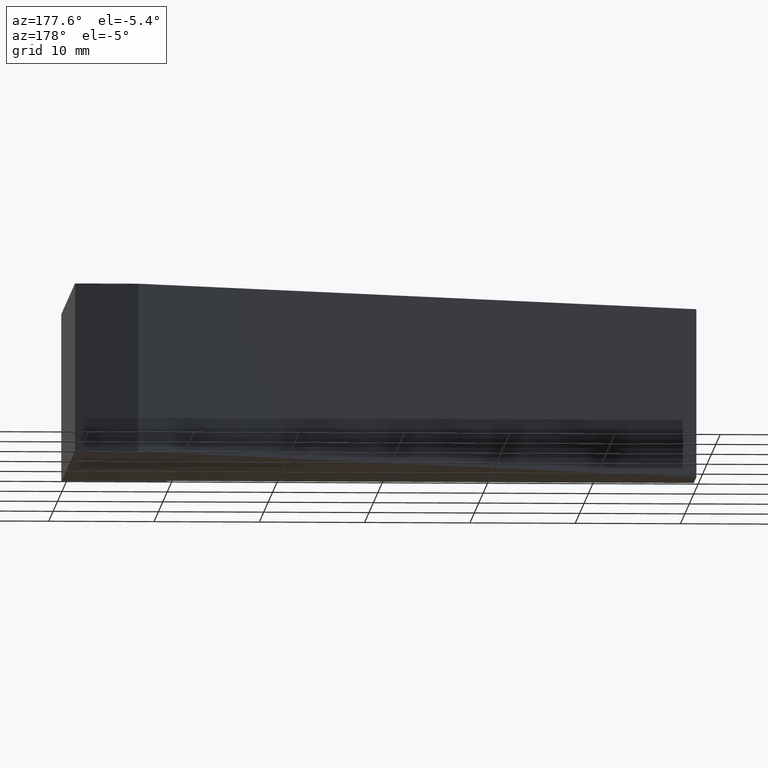
[diagram: clean part render]
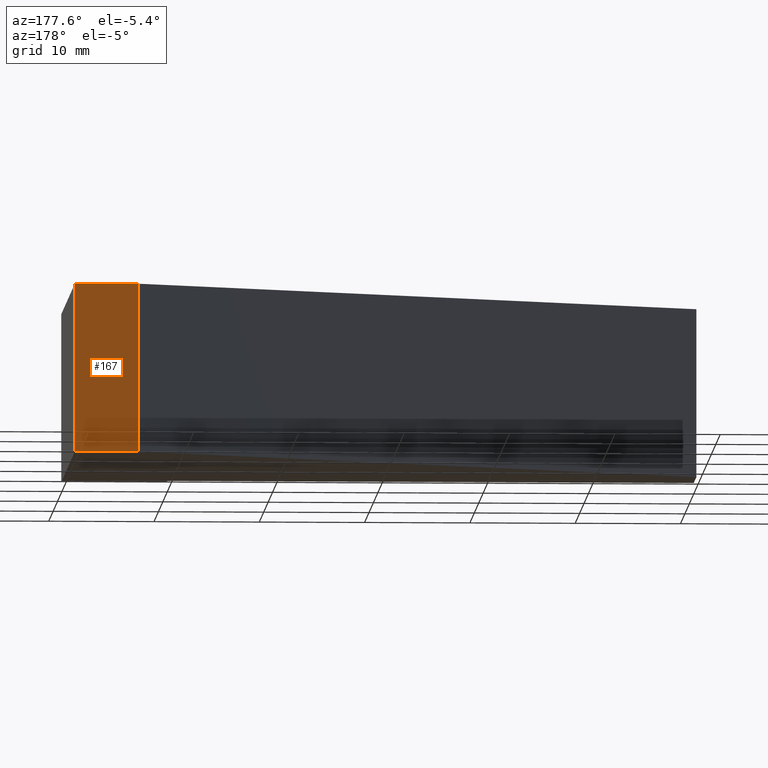
[diagram: same view with one face highlighted and labeled with its STEP entity id]
A machine part, auxiliary view. The second image highlights one B-rep face of the part: STEP entity #167.
In plain terms, the highlighted planar face has unit normal (-0, 1, 0).
Its self-contained STEP definition (entity closure, byte-faithful):
#21=FACE_OUTER_BOUND('',#30,.T.);
#30=EDGE_LOOP('',(#134,#135,#136,#137));
#40=LINE('',#259,#61);
#49=LINE('',#277,#70);
#50=LINE('',#280,#71);
#51=LINE('',#281,#72);
#61=VECTOR('',#213,10.);
#70=VECTOR('',#230,10.);
#71=VECTOR('',#233,10.);
#72=VECTOR('',#234,10.);
#77=VERTEX_POINT('',#247);
#82=VERTEX_POINT('',#257);
#87=VERTEX_POINT('',#275);
#88=VERTEX_POINT('',#279);
#96=EDGE_CURVE('',#77,#82,#40,.T.);
#105=EDGE_CURVE('',#87,#82,#49,.T.);
#106=EDGE_CURVE('',#87,#88,#50,.T.);
#107=EDGE_CURVE('',#88,#77,#51,.T.);
#134=ORIENTED_EDGE('',*,*,#106,.T.);
#135=ORIENTED_EDGE('',*,*,#107,.T.);
#136=ORIENTED_EDGE('',*,*,#96,.T.);
#137=ORIENTED_EDGE('',*,*,#105,.F.);
#158=PLANE('',#199);
#167=ADVANCED_FACE('',(#21),#158,.T.);
#199=AXIS2_PLACEMENT_3D('',#278,#231,#232);
#213=DIRECTION('',(-1.,-7.40148683083438E-16,0.));
#230=DIRECTION('',(0.,0.,-1.));
#231=DIRECTION('center_axis',(-7.40148683083438E-16,1.,0.));
#232=DIRECTION('ref_axis',(0.,0.,1.));
#233=DIRECTION('',(1.,7.40148683083438E-16,0.));
#234=DIRECTION('',(0.,0.,-1.));
#247=CARTESIAN_POINT('',(-1.11022302462516E-14,29.5,-8.));
#257=CARTESIAN_POINT('',(-6.00000000000001,29.5,-8.));
#259=CARTESIAN_POINT('',(-6.00000000000001,29.5,-8.));
#275=CARTESIAN_POINT('',(-6.00000000000001,29.5,8.));
#277=CARTESIAN_POINT('',(-6.00000000000001,29.5,0.));
#278=CARTESIAN_POINT('Origin',(-6.00000000000001,29.5,0.));
#279=CARTESIAN_POINT('',(-1.11022302462516E-14,29.5,8.));
#280=CARTESIAN_POINT('',(-6.00000000000001,29.5,8.));
#281=CARTESIAN_POINT('',(-1.11022302462516E-14,29.5,0.));